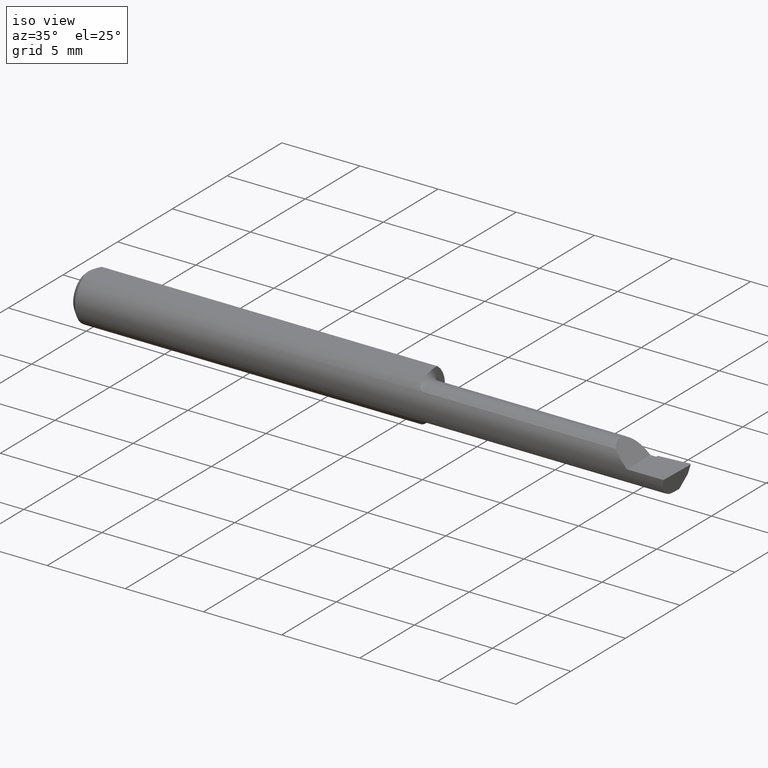
[diagram: clean part render]
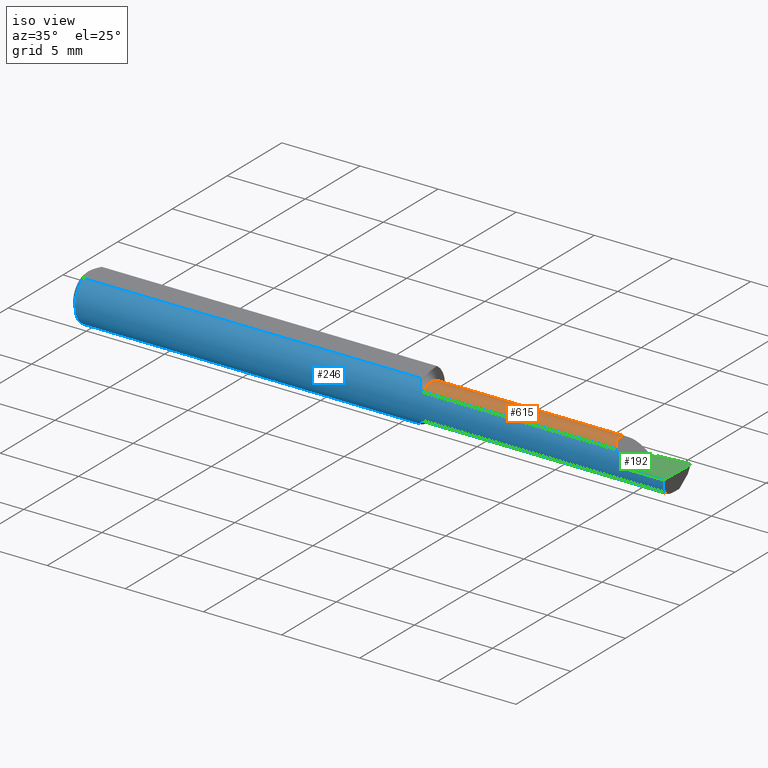
[diagram: same view with three faces highlighted in distinct colors, each labeled with its STEP entity id]
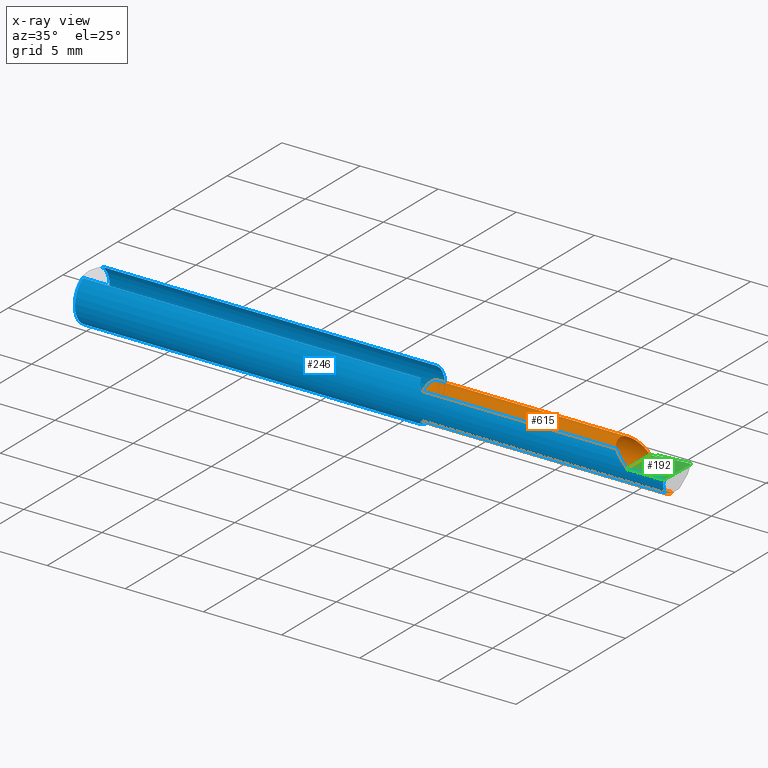
[diagram: x-ray of the same camera — body ghosted, the three highlighted faces saturated]
A machine part, iso view with three faces highlighted in distinct colors.
The next image is the same camera in x-ray (body ghosted, the three faces saturated) — at least one of them is partly hidden behind the body in this view.
Their STEP definitions:

[orange] entity #615 — the highlighted cylindrical surface (edge-blend (fillet) strip) has radius 1.1443 mm, axis along (-1, -0, -0).
#8 = ORIENTED_EDGE ( 'NONE', *, *, #517, .F. ) ;
#50 = EDGE_CURVE ( 'NONE', #646, #102, #438, .T. ) ;
#57 = EDGE_CURVE ( 'NONE', #390, #650, #120, .T. ) ;
#59 = DIRECTION ( 'NONE',  ( -1.000000000000000000, -5.691349986800549142E-18, -0.0000000000000000000 ) ) ;
#63 = DIRECTION ( 'NONE',  ( 0.0000000000000000000, -1.000000000000000000, 0.0000000000000000000 ) ) ;
#67 = CARTESIAN_POINT ( 'NONE',  ( 1.492946566646605078, -0.02239999999999999630, -0.04504999999999998589 ) ) ;
#90 = EDGE_CURVE ( 'NONE', #454, #638, #345, .T. ) ;
#94 = VECTOR ( 'NONE', #593, 39.37007874015748143 ) ;
#102 = VERTEX_POINT ( 'NONE', #219 ) ;
#117 = EDGE_CURVE ( 'NONE', #318, #344, #149, .T. ) ;
#118 = CARTESIAN_POINT ( 'NONE',  ( 1.420000000000000151, -0.02239999999999999630, 0.0000000000000000000 ) ) ;
#120 = LINE ( 'NONE', #157, #329 ) ;
#137 = DIRECTION ( 'NONE',  ( 1.000000000000000000, 5.691349986800549142E-18, 0.0000000000000000000 ) ) ;
#144 = DIRECTION ( 'NONE',  ( 1.000000000000000000, 5.691349986800549142E-18, 0.0000000000000000000 ) ) ;
#146 = EDGE_CURVE ( 'NONE', #372, #318, #262, .T. ) ;
#149 =( BOUNDED_CURVE ( )  B_SPLINE_CURVE ( 3, ( #152, #577, #526, #264 ),
 .UNSPECIFIED., .F., .T. ) 
 B_SPLINE_CURVE_WITH_KNOTS ( ( 4, 4 ),
 ( 5.546277306536648410, 7.853981633974482790 ),
 .UNSPECIFIED. ) 
 CURVE ( )  GEOMETRIC_REPRESENTATION_ITEM ( )  RATIONAL_B_SPLINE_CURVE ( ( 1.000000000000000000, 0.6033122017619977351, 0.6033122017619977351, 1.000000000000000000 ) ) 
 REPRESENTATION_ITEM ( '' )  );
#152 = CARTESIAN_POINT ( 'NONE',  ( 1.371638225962093838, -0.05267366071428594004, 0.03336177403790593909 ) ) ;
#157 = CARTESIAN_POINT ( 'NONE',  ( 1.152500000000000080, -0.05267366071428578739, -0.03336177403790609869 ) ) ;
#161 = CYLINDRICAL_SURFACE ( 'NONE', #622, 0.04504999999999996507 ) ;
#166 = CARTESIAN_POINT ( 'NONE',  ( 1.492874371667013866, -0.04428776192107812537, -0.04097143695815293196 ) ) ;
#168 = CARTESIAN_POINT ( 'NONE',  ( 1.492650040401416689, -0.03372388044486962499, -0.04504999999999997201 ) ) ;
#169 = DIRECTION ( 'NONE',  ( 1.000000000000000000, 5.691349986800549142E-18, 0.0000000000000000000 ) ) ;
#175 = ORIENTED_EDGE ( 'NONE', *, *, #502, .F. ) ;
#191 = CARTESIAN_POINT ( 'NONE',  ( 1.420000000000000151, -0.001476535193823043943, -0.03989625446711346501 ) ) ;
#194 = DIRECTION ( 'NONE',  ( -1.000000000000000000, -5.691349986800549142E-18, -0.0000000000000000000 ) ) ;
#219 = CARTESIAN_POINT ( 'NONE',  ( 1.420000000000000151, 0.01811171944543690446, -0.01970540757188763911 ) ) ;
#226 = CARTESIAN_POINT ( 'NONE',  ( 0.8850000000000001199, -0.05267366071428589841, 0.03336177403790596685 ) ) ;
#232 = CARTESIAN_POINT ( 'NONE',  ( -2.563953169053420290E-19, 0.02264999999999995489, 1.836970198721030427E-16 ) ) ;
#233 = LINE ( 'NONE', #620, #94 ) ;
#262 = LINE ( 'NONE', #469, #572 ) ;
#264 = CARTESIAN_POINT ( 'NONE',  ( 1.405000000000000249, 0.02264999999999992714, 1.163414459189985436E-17 ) ) ;
#265 = CIRCLE ( 'NONE', #564, 0.04504999999999993732 ) ;
#274 = ORIENTED_EDGE ( 'NONE', *, *, #90, .T. ) ;
#275 = CARTESIAN_POINT ( 'NONE',  ( 1.420000000000000151, -0.02239999999999999630, 0.0000000000000000000 ) ) ;
#299 = ORIENTED_EDGE ( 'NONE', *, *, #331, .F. ) ;
#309 = LINE ( 'NONE', #232, #326 ) ;
#315 = CARTESIAN_POINT ( 'NONE',  ( 0.0000000000000000000, -0.02240000000000000324, 0.0000000000000000000 ) ) ;
#318 = VERTEX_POINT ( 'NONE', #645 ) ;
#326 = VECTOR ( 'NONE', #137, 39.37007874015748143 ) ;
#329 = VECTOR ( 'NONE', #606, 39.37007874015748143 ) ;
#330 = ORIENTED_EDGE ( 'NONE', *, *, #57, .T. ) ;
#331 = EDGE_CURVE ( 'NONE', #372, #650, #265, .T. ) ;
#335 = CARTESIAN_POINT ( 'NONE',  ( 0.8850000000000001199, -0.05267366071428587759, -0.03336177403790597379 ) ) ;
#339 = DIRECTION ( 'NONE',  ( 0.0000000000000000000, -1.000000000000000000, 0.0000000000000000000 ) ) ;
#344 = VERTEX_POINT ( 'NONE', #540 ) ;
#345 = CIRCLE ( 'NONE', #442, 0.04504999999999999283 ) ;
#351 = CARTESIAN_POINT ( 'NONE',  ( 1.493589448587071544, -0.05267366071428578739, -0.03336177403790609869 ) ) ;
#352 = CARTESIAN_POINT ( 'NONE',  ( 1.420000000000000151, -0.02239999999999999630, -0.04504999999999998589 ) ) ;
#369 = EDGE_CURVE ( 'NONE', #390, #626, #570, .T. ) ;
#372 = VERTEX_POINT ( 'NONE', #226 ) ;
#376 = AXIS2_PLACEMENT_3D ( 'NONE', #275, #483, #63 ) ;
#377 = CIRCLE ( 'NONE', #452, 0.04504999999999996507 ) ;
#390 = VERTEX_POINT ( 'NONE', #351 ) ;
#408 = EDGE_LOOP ( 'NONE', ( #525, #330, #299, #632, #516, #583, #552, #175, #274, #8 ) ) ;
#438 = CIRCLE ( 'NONE', #376, 0.04504999999999999283 ) ;
#442 = AXIS2_PLACEMENT_3D ( 'NONE', #582, #59, #580 ) ;
#452 = AXIS2_PLACEMENT_3D ( 'NONE', #118, #169, #543 ) ;
#454 = VERTEX_POINT ( 'NONE', #191 ) ;
#469 = CARTESIAN_POINT ( 'NONE',  ( 1.152500000000000080, -0.05267366071428578739, 0.03336177403790609869 ) ) ;
#483 = DIRECTION ( 'NONE',  ( -1.000000000000000000, -5.691349986800549142E-18, -0.0000000000000000000 ) ) ;
#502 = EDGE_CURVE ( 'NONE', #454, #102, #377, .T. ) ;
#512 = CARTESIAN_POINT ( 'NONE',  ( 1.492946566646605078, -0.02239999999999999630, -0.04504999999999998589 ) ) ;
#516 = ORIENTED_EDGE ( 'NONE', *, *, #117, .T. ) ;
#517 = EDGE_CURVE ( 'NONE', #626, #638, #233, .T. ) ;
#525 = ORIENTED_EDGE ( 'NONE', *, *, #369, .F. ) ;
#526 = CARTESIAN_POINT ( 'NONE',  ( 1.359483931624303699, 0.02264999999999996530, 0.04551606837569594638 ) ) ;
#537 = CARTESIAN_POINT ( 'NONE',  ( 1.493589448587071544, -0.05267366071428578739, -0.03336177403790609869 ) ) ;
#540 = CARTESIAN_POINT ( 'NONE',  ( 1.405000000000000249, 0.02264999999999992714, 1.163414459189985436E-17 ) ) ;
#543 = DIRECTION ( 'NONE',  ( 0.0000000000000000000, -1.000000000000000000, 0.0000000000000000000 ) ) ;
#544 = DIRECTION ( 'NONE',  ( -1.000000000000000000, -5.691349986800549142E-18, -0.0000000000000000000 ) ) ;
#552 = ORIENTED_EDGE ( 'NONE', *, *, #50, .T. ) ;
#564 = AXIS2_PLACEMENT_3D ( 'NONE', #649, #544, #339 ) ;
#570 =( BOUNDED_CURVE ( )  B_SPLINE_CURVE ( 3, ( #537, #166, #168, #67 ),
 .UNSPECIFIED., .F., .T. ) 
 B_SPLINE_CURVE_WITH_KNOTS ( ( 4, 4 ),
 ( 5.756326750816667115, 6.493234751459600496 ),
 .UNSPECIFIED. ) 
 CURVE ( )  GEOMETRIC_REPRESENTATION_ITEM ( )  RATIONAL_B_SPLINE_CURVE ( ( 1.000000000000000000, 0.9552568590268901705, 0.9552568590268901705, 1.000000000000000000 ) ) 
 REPRESENTATION_ITEM ( '' )  );
#572 = VECTOR ( 'NONE', #144, 39.37007874015748143 ) ;
#577 = CARTESIAN_POINT ( 'NONE',  ( 1.341051366671215384, -0.01896673977657570287, 0.06394863332878410189 ) ) ;
#580 = DIRECTION ( 'NONE',  ( 0.0000000000000000000, -1.000000000000000000, 0.0000000000000000000 ) ) ;
#581 = FACE_OUTER_BOUND ( 'NONE', #408, .T. ) ;
#582 = CARTESIAN_POINT ( 'NONE',  ( 1.420000000000000151, -0.02239999999999999630, 0.0000000000000000000 ) ) ;
#583 = ORIENTED_EDGE ( 'NONE', *, *, #623, .T. ) ;
#593 = DIRECTION ( 'NONE',  ( -1.000000000000000000, 5.691349986800548372E-18, -0.0000000000000000000 ) ) ;
#606 = DIRECTION ( 'NONE',  ( -1.000000000000000000, -5.691349986800549142E-18, -0.0000000000000000000 ) ) ;
#615 = ADVANCED_FACE ( 'NONE', ( #581 ), #161, .T. ) ;
#620 = CARTESIAN_POINT ( 'NONE',  ( 1.500000000000000222, -0.02239999999999999630, -0.04504999999999998589 ) ) ;
#622 = AXIS2_PLACEMENT_3D ( 'NONE', #315, #194, #662 ) ;
#623 = EDGE_CURVE ( 'NONE', #344, #646, #309, .T. ) ;
#626 = VERTEX_POINT ( 'NONE', #512 ) ;
#632 = ORIENTED_EDGE ( 'NONE', *, *, #146, .T. ) ;
#638 = VERTEX_POINT ( 'NONE', #352 ) ;
#645 = CARTESIAN_POINT ( 'NONE',  ( 1.371638225962093838, -0.05267366071428594004, 0.03336177403790593909 ) ) ;
#646 = VERTEX_POINT ( 'NONE', #648 ) ;
#648 = CARTESIAN_POINT ( 'NONE',  ( 1.420000000000000151, 0.02264999999999999653, 1.836970198721031660E-16 ) ) ;
#649 = CARTESIAN_POINT ( 'NONE',  ( 0.8850000000000001199, -0.02239999999999999977, 0.0000000000000000000 ) ) ;
#650 = VERTEX_POINT ( 'NONE', #335 ) ;
#662 = DIRECTION ( 'NONE',  ( 5.691349986800549913E-18, -1.000000000000000000, 0.0000000000000000000 ) ) ;

[blue] entity #246 — the highlighted cylindrical surface (edge-blend (fillet) strip) has radius 1.5837 mm, axis along (-1, -0, -0).
#7 = CARTESIAN_POINT ( 'NONE',  ( 0.01500000000000000465, 0.0000000000000000000, -0.06235000000000000264 ) ) ;
#11 =( BOUNDED_CURVE ( )  B_SPLINE_CURVE ( 3, ( #241, #553, #658, #45 ),
 .UNSPECIFIED., .F., .T. ) 
 B_SPLINE_CURVE_WITH_KNOTS ( ( 4, 4 ),
 ( 0.7961532496683325633, 1.360746882514882961 ),
 .UNSPECIFIED. ) 
 CURVE ( )  GEOMETRIC_REPRESENTATION_ITEM ( )  RATIONAL_B_SPLINE_CURVE ( ( 1.000000000000000000, 0.9736121104788257874, 0.9736121104788257874, 1.000000000000000000 ) ) 
 REPRESENTATION_ITEM ( '' )  );
#21 = CARTESIAN_POINT ( 'NONE',  ( 1.405000000000000249, -0.06235000000000005121, 1.163414459189985436E-17 ) ) ;
#27 = VECTOR ( 'NONE', #268, 39.37007874015748143 ) ;
#28 = VECTOR ( 'NONE', #560, 39.37007874015748143 ) ;
#32 = CARTESIAN_POINT ( 'NONE',  ( 0.8681327455766955081, -0.03943215935316556064, -0.04868886658133497053 ) ) ;
#33 = EDGE_CURVE ( 'NONE', #114, #456, #155, .T. ) ;
#45 = CARTESIAN_POINT ( 'NONE',  ( 1.497433779686218935, -0.06235000000000005121, 3.231995301756451425E-19 ) ) ;
#51 = AXIS2_PLACEMENT_3D ( 'NONE', #287, #595, #538 ) ;
#57 = EDGE_CURVE ( 'NONE', #390, #650, #120, .T. ) ;
#58 = LINE ( 'NONE', #466, #635 ) ;
#61 = ORIENTED_EDGE ( 'NONE', *, *, #400, .T. ) ;
#62 = LINE ( 'NONE', #533, #27 ) ;
#64 = B_SPLINE_CURVE_WITH_KNOTS ( 'NONE', 3,
 ( #467, #100, #515, #200, #255, #621, #568, #311, #675, #364 ),
 .UNSPECIFIED., .F., .F.,
 ( 4, 2, 2, 2, 4 ),
 ( 3.797231421916798275E-07, 0.0004333373953855913481, 0.0006498162315072887087, 0.0007580556495681341905, 0.0008662950676289795640 ),
 .UNSPECIFIED. ) ;
#78 = DIRECTION ( 'NONE',  ( 0.0000000000000000000, 1.000000000000000000, 0.0000000000000000000 ) ) ;
#80 = LINE ( 'NONE', #421, #28 ) ;
#84 = CARTESIAN_POINT ( 'NONE',  ( 0.8787757133464818571, -0.05116520334387907737, -0.03564627526859109191 ) ) ;
#88 = CARTESIAN_POINT ( 'NONE',  ( 0.8627289934230482071, -0.02215482600002543698, -0.05866202889160986034 ) ) ;
#95 = CARTESIAN_POINT ( 'NONE',  ( 0.01500000000000185039, -0.03386738844380016850, 0.05235000000000000070 ) ) ;
#96 = VERTEX_POINT ( 'NONE', #532 ) ;
#100 = CARTESIAN_POINT ( 'NONE',  ( 0.8678735227475141700, -0.03849383661596396389, 0.04935695859860206314 ) ) ;
#103 = CARTESIAN_POINT ( 'NONE',  ( 0.8661821896890746775, -0.03386738844375222074, 0.05235000000000000070 ) ) ;
#106 = EDGE_CURVE ( 'NONE', #96, #490, #62, .T. ) ;
#114 = VERTEX_POINT ( 'NONE', #7 ) ;
#115 = ORIENTED_EDGE ( 'NONE', *, *, #388, .F. ) ;
#120 = LINE ( 'NONE', #157, #329 ) ;
#133 = CARTESIAN_POINT ( 'NONE',  ( 0.8602764403634772794, -0.002103274276246023915, -0.06268864719924562012 ) ) ;
#134 = ORIENTED_EDGE ( 'NONE', *, *, #135, .T. ) ;
#135 = EDGE_CURVE ( 'NONE', #239, #447, #80, .T. ) ;
#138 = ORIENTED_EDGE ( 'NONE', *, *, #321, .T. ) ;
#142 = CARTESIAN_POINT ( 'NONE',  ( 1.405000000000000249, -0.06235000000000005121, 1.163414459189985436E-17 ) ) ;
#144 = DIRECTION ( 'NONE',  ( 1.000000000000000000, 5.691349986800549142E-18, 0.0000000000000000000 ) ) ;
#146 = EDGE_CURVE ( 'NONE', #372, #318, #262, .T. ) ;
#155 = CIRCLE ( 'NONE', #337, 0.06235000000000000264 ) ;
#157 = CARTESIAN_POINT ( 'NONE',  ( 1.152500000000000080, -0.05267366071428578739, -0.03336177403790609869 ) ) ;
#159 = FACE_OUTER_BOUND ( 'NONE', #334, .T. ) ;
#182 = CARTESIAN_POINT ( 'NONE',  ( 0.8600000000000000977, 0.01155624999999977677, -0.06126969549408178839 ) ) ;
#189 = CARTESIAN_POINT ( 'NONE',  ( 0.0000000000000000000, 0.0000000000000000000, 0.0000000000000000000 ) ) ;
#200 = CARTESIAN_POINT ( 'NONE',  ( 0.8740738374070420313, -0.04761084945882115144, 0.04033650601908230632 ) ) ;
#226 = CARTESIAN_POINT ( 'NONE',  ( 0.8850000000000001199, -0.05267366071428589841, 0.03336177403790596685 ) ) ;
#234 = CARTESIAN_POINT ( 'NONE',  ( 1.381685276638327631, -0.05903713403021961653, 0.02331472336167206283 ) ) ;
#237 = CIRCLE ( 'NONE', #251, 0.06235000000000000264 ) ;
#239 = VERTEX_POINT ( 'NONE', #529 ) ;
#241 = CARTESIAN_POINT ( 'NONE',  ( 1.493589448587071544, -0.05267366071428578739, -0.03336177403790609869 ) ) ;
#246 = ADVANCED_FACE ( 'NONE', ( #159 ), #354, .T. ) ;
#251 = AXIS2_PLACEMENT_3D ( 'NONE', #448, #395, #78 ) ;
#254 = ORIENTED_EDGE ( 'NONE', *, *, #146, .F. ) ;
#255 = CARTESIAN_POINT ( 'NONE',  ( 0.8756610829636815030, -0.04915643512136039922, 0.03841395140597850949 ) ) ;
#261 = DIRECTION ( 'NONE',  ( -1.000000000000000000, -0.0000000000000000000, -0.0000000000000000000 ) ) ;
#262 = LINE ( 'NONE', #469, #572 ) ;
#268 = DIRECTION ( 'NONE',  ( 1.000000000000000000, 0.0000000000000000000, 0.0000000000000000000 ) ) ;
#276 = ORIENTED_EDGE ( 'NONE', *, *, #283, .F. ) ;
#283 = EDGE_CURVE ( 'NONE', #328, #490, #237, .T. ) ;
#287 = CARTESIAN_POINT ( 'NONE',  ( 0.01500000000000000465, 0.0000000000000000000, 0.0000000000000000000 ) ) ;
#289 = ORIENTED_EDGE ( 'NONE', *, *, #106, .T. ) ;
#290 = DIRECTION ( 'NONE',  ( 0.0000000000000000000, 0.0000000000000000000, 1.000000000000000000 ) ) ;
#303 = DIRECTION ( 'NONE',  ( 0.0000000000000000000, 0.0000000000000000000, 1.000000000000000000 ) ) ;
#311 = CARTESIAN_POINT ( 'NONE',  ( 0.8821345559677666870, -0.05240678568573022694, 0.03378794548805846149 ) ) ;
#318 = VERTEX_POINT ( 'NONE', #645 ) ;
#321 = EDGE_CURVE ( 'NONE', #447, #318, #522, .T. ) ;
#324 = DIRECTION ( 'NONE',  ( -1.000000000000000000, -0.0000000000000000000, -0.0000000000000000000 ) ) ;
#328 = VERTEX_POINT ( 'NONE', #489 ) ;
#329 = VECTOR ( 'NONE', #606, 39.37007874015748143 ) ;
#332 = ORIENTED_EDGE ( 'NONE', *, *, #33, .F. ) ;
#334 = EDGE_LOOP ( 'NONE', ( #536, #61, #134, #138, #254, #576, #441, #332, #554, #289, #276, #115 ) ) ;
#335 = CARTESIAN_POINT ( 'NONE',  ( 0.8850000000000001199, -0.05267366071428587759, -0.03336177403790597379 ) ) ;
#336 = CARTESIAN_POINT ( 'NONE',  ( 1.393107270290912636, -0.06235000000000000264, 0.01189272970908746181 ) ) ;
#337 = AXIS2_PLACEMENT_3D ( 'NONE', #656, #611, #303 ) ;
#346 = CARTESIAN_POINT ( 'NONE',  ( 0.8832409546724755423, -0.05267366071428587065, -0.03336177403790598073 ) ) ;
#349 = CARTESIAN_POINT ( 'NONE',  ( 0.8850000000000001199, -0.05267366071428587759, -0.03336177403790597379 ) ) ;
#350 = CARTESIAN_POINT ( 'NONE',  ( 0.8726126354017770259, -0.04600867268841657420, -0.04219264322731243466 ) ) ;
#351 = CARTESIAN_POINT ( 'NONE',  ( 1.493589448587071544, -0.05267366071428578739, -0.03336177403790609869 ) ) ;
#354 = CYLINDRICAL_SURFACE ( 'NONE', #394, 0.06235000000000000264 ) ;
#364 = CARTESIAN_POINT ( 'NONE',  ( 0.8850000000000001199, -0.05267366071428589841, 0.03336177403790596685 ) ) ;
#372 = VERTEX_POINT ( 'NONE', #226 ) ;
#374 = VERTEX_POINT ( 'NONE', #103 ) ;
#387 = CARTESIAN_POINT ( 'NONE',  ( 1.371638225962093838, -0.05267366071428594004, 0.03336177403790593909 ) ) ;
#388 = EDGE_CURVE ( 'NONE', #650, #328, #531, .T. ) ;
#390 = VERTEX_POINT ( 'NONE', #351 ) ;
#394 = AXIS2_PLACEMENT_3D ( 'NONE', #189, #324, #290 ) ;
#395 = DIRECTION ( 'NONE',  ( 1.000000000000000000, 5.691349986800549142E-18, 0.0000000000000000000 ) ) ;
#397 = CARTESIAN_POINT ( 'NONE',  ( 0.8775684941556227692, -0.05043275970182659745, -0.03668598949093534317 ) ) ;
#400 = EDGE_CURVE ( 'NONE', #390, #239, #11, .T. ) ;
#401 = CARTESIAN_POINT ( 'NONE',  ( 0.8659889881172214698, -0.03406974560157232518, -0.05264335079965575676 ) ) ;
#421 = CARTESIAN_POINT ( 'NONE',  ( 2.249639673992788601E-32, -0.06234999999999999570, 1.836970198721030427E-16 ) ) ;
#441 = ORIENTED_EDGE ( 'NONE', *, *, #574, .T. ) ;
#447 = VERTEX_POINT ( 'NONE', #142 ) ;
#448 = CARTESIAN_POINT ( 'NONE',  ( 0.8600000000000000977, 0.0000000000000000000, 0.0000000000000000000 ) ) ;
#453 = CARTESIAN_POINT ( 'NONE',  ( 0.8815922039432546597, -0.05228879390856557702, -0.03397671269166892966 ) ) ;
#455 = CARTESIAN_POINT ( 'NONE',  ( 0.8616480927463245898, -0.01564147840104317816, -0.06074236086770335580 ) ) ;
#456 = VERTEX_POINT ( 'NONE', #95 ) ;
#461 = EDGE_CURVE ( 'NONE', #374, #372, #64, .T. ) ;
#466 = CARTESIAN_POINT ( 'NONE',  ( 0.0000000000000000000, -0.03386738844375222768, 0.05234999999999997988 ) ) ;
#467 = CARTESIAN_POINT ( 'NONE',  ( 0.8661821896890746775, -0.03386738844375222074, 0.05235000000000000070 ) ) ;
#469 = CARTESIAN_POINT ( 'NONE',  ( 1.152500000000000080, -0.05267366071428578739, 0.03336177403790609869 ) ) ;
#481 = CIRCLE ( 'NONE', #51, 0.06235000000000000264 ) ;
#489 = CARTESIAN_POINT ( 'NONE',  ( 0.8600000000000000977, 0.01155624999999977677, -0.06126969549408178839 ) ) ;
#490 = VERTEX_POINT ( 'NONE', #610 ) ;
#503 = CARTESIAN_POINT ( 'NONE',  ( 0.8599999999999958789, 0.004792881695546951336, -0.06254535345742004426 ) ) ;
#515 = CARTESIAN_POINT ( 'NONE',  ( 0.8698990837423202782, -0.04251446938472882436, 0.04588310374207916348 ) ) ;
#522 =( BOUNDED_CURVE ( )  B_SPLINE_CURVE ( 3, ( #21, #336, #234, #387 ),
 .UNSPECIFIED., .F., .T. ) 
 B_SPLINE_CURVE_WITH_KNOTS ( ( 4, 4 ),
 ( 4.712388980384689674, 5.276982613231236741 ),
 .UNSPECIFIED. ) 
 CURVE ( )  GEOMETRIC_REPRESENTATION_ITEM ( )  RATIONAL_B_SPLINE_CURVE ( ( 1.000000000000000000, 0.9736121104788260094, 0.9736121104788260094, 1.000000000000000000 ) ) 
 REPRESENTATION_ITEM ( '' )  );
#529 = CARTESIAN_POINT ( 'NONE',  ( 1.497433779686218935, -0.06235000000000005121, 3.231995301756451425E-19 ) ) ;
#531 = B_SPLINE_CURVE_WITH_KNOTS ( 'NONE', 3,
 ( #349, #346, #453, #84, #397, #655, #350, #32, #401, #88, #455, #133, #503, #182 ),
 .UNSPECIFIED., .F., .F.,
 ( 4, 2, 2, 2, 2, 2, 4 ),
 ( 1.960001601932203710E-07, 0.0001315703184465657908, 0.0002629446367329383292, 0.0005256932733056836771, 0.001051190546451174265, 0.001576687819596664418, 0.002102185092742154572 ),
 .UNSPECIFIED. ) ;
#532 = CARTESIAN_POINT ( 'NONE',  ( 0.01500000000000000465, 0.03386738844375223462, 0.05234999999999997988 ) ) ;
#533 = CARTESIAN_POINT ( 'NONE',  ( 0.0000000000000000000, 0.03386738844375223462, 0.05234999999999997988 ) ) ;
#536 = ORIENTED_EDGE ( 'NONE', *, *, #57, .F. ) ;
#538 = DIRECTION ( 'NONE',  ( 0.0000000000000000000, 0.0000000000000000000, 1.000000000000000000 ) ) ;
#553 = CARTESIAN_POINT ( 'NONE',  ( 1.494656860756163885, -0.05903713403021959572, -0.02331472336167220855 ) ) ;
#554 = ORIENTED_EDGE ( 'NONE', *, *, #585, .F. ) ;
#560 = DIRECTION ( 'NONE',  ( -1.000000000000000000, -0.0000000000000000000, -0.0000000000000000000 ) ) ;
#568 = CARTESIAN_POINT ( 'NONE',  ( 0.8796548993184856169, -0.05157034440792590546, 0.03505133412385286196 ) ) ;
#572 = VECTOR ( 'NONE', #144, 39.37007874015748143 ) ;
#574 = EDGE_CURVE ( 'NONE', #374, #456, #58, .T. ) ;
#576 = ORIENTED_EDGE ( 'NONE', *, *, #461, .F. ) ;
#585 = EDGE_CURVE ( 'NONE', #96, #114, #481, .T. ) ;
#595 = DIRECTION ( 'NONE',  ( -1.000000000000000000, -0.0000000000000000000, -0.0000000000000000000 ) ) ;
#606 = DIRECTION ( 'NONE',  ( -1.000000000000000000, -5.691349986800549142E-18, -0.0000000000000000000 ) ) ;
#610 = CARTESIAN_POINT ( 'NONE',  ( 0.8600000000000000977, 0.03386738844375224156, 0.05235000000000000070 ) ) ;
#611 = DIRECTION ( 'NONE',  ( -1.000000000000000000, -0.0000000000000000000, -0.0000000000000000000 ) ) ;
#621 = CARTESIAN_POINT ( 'NONE',  ( 0.8785877219039738284, -0.05102224570557687550, 0.03585204334870993603 ) ) ;
#635 = VECTOR ( 'NONE', #261, 39.37007874015748143 ) ;
#645 = CARTESIAN_POINT ( 'NONE',  ( 1.371638225962093838, -0.05267366071428594004, 0.03336177403790593909 ) ) ;
#650 = VERTEX_POINT ( 'NONE', #335 ) ;
#655 = CARTESIAN_POINT ( 'NONE',  ( 0.8743270384831821618, -0.04799382633214963056, -0.03989142061000421069 ) ) ;
#656 = CARTESIAN_POINT ( 'NONE',  ( 0.01500000000000000465, 0.0000000000000000000, 0.0000000000000000000 ) ) ;
#658 = CARTESIAN_POINT ( 'NONE',  ( 1.495973035530413053, -0.06235000000000000958, -0.01189272970908753987 ) ) ;
#675 = CARTESIAN_POINT ( 'NONE',  ( 0.8835376041507414513, -0.05267366071513952808, 0.03336177403655846141 ) ) ;

[green] entity #192 — the highlighted planar face has unit normal (-0, 0, -1).
#1 = CARTESIAN_POINT ( 'NONE',  ( 1.420000000000000151, -0.2500000000000000555, 9.797174393178828616E-18 ) ) ;
#5 = CARTESIAN_POINT ( 'NONE',  ( 1.496007920276498648, 0.03524764111161338143, 0.0000000000000000000 ) ) ;
#9 = ORIENTED_EDGE ( 'NONE', *, *, #179, .F. ) ;
#13 = EDGE_CURVE ( 'NONE', #447, #344, #298, .T. ) ;
#28 = VECTOR ( 'NONE', #560, 39.37007874015748143 ) ;
#30 =( BOUNDED_CURVE ( )  B_SPLINE_CURVE ( 3, ( #379, #160, #112, #637 ),
 .UNSPECIFIED., .F., .F. ) 
 B_SPLINE_CURVE_WITH_KNOTS ( ( 4, 4 ),
 ( 3.511516179717623753, 3.604018710826140115 ),
 .UNSPECIFIED. ) 
 CURVE ( )  GEOMETRIC_REPRESENTATION_ITEM ( )  RATIONAL_B_SPLINE_CURVE ( ( 1.000000000000000000, 0.9992870672494020834, 0.9992870672494020834, 1.000000000000000000 ) ) 
 REPRESENTATION_ITEM ( '' )  );
#43 = CARTESIAN_POINT ( 'NONE',  ( 1.405000000000000249, -0.2500000000000000555, 1.163414459189985436E-17 ) ) ;
#66 = ORIENTED_EDGE ( 'NONE', *, *, #548, .F. ) ;
#69 = FACE_OUTER_BOUND ( 'NONE', #449, .T. ) ;
#74 = LINE ( 'NONE', #624, #341 ) ;
#80 = LINE ( 'NONE', #421, #28 ) ;
#83 = EDGE_CURVE ( 'NONE', #600, #439, #30, .T. ) ;
#108 = VERTEX_POINT ( 'NONE', #187 ) ;
#112 = CARTESIAN_POINT ( 'NONE',  ( 1.495759144559519527, 0.03524165206609278927, 8.547915732267098835E-18 ) ) ;
#125 = VECTOR ( 'NONE', #411, 39.37007874015748143 ) ;
#128 = VERTEX_POINT ( 'NONE', #148 ) ;
#135 = EDGE_CURVE ( 'NONE', #239, #447, #80, .T. ) ;
#137 = DIRECTION ( 'NONE',  ( 1.000000000000000000, 5.691349986800549142E-18, 0.0000000000000000000 ) ) ;
#142 = CARTESIAN_POINT ( 'NONE',  ( 1.405000000000000249, -0.06235000000000005121, 1.163414459189985436E-17 ) ) ;
#148 = CARTESIAN_POINT ( 'NONE',  ( 1.499880855614015740, 0.03110005946548960454, 2.797005382439232540E-20 ) ) ;
#151 = DIRECTION ( 'NONE',  ( -1.224646799147353947E-16, 0.0000000000000000000, -1.000000000000000000 ) ) ;
#160 = CARTESIAN_POINT ( 'NONE',  ( 1.495883579913029671, 0.03524764111161338836, 8.532676796529436165E-18 ) ) ;
#172 = VECTOR ( 'NONE', #625, 39.37007874015748143 ) ;
#179 = EDGE_CURVE ( 'NONE', #646, #108, #445, .T. ) ;
#186 = EDGE_CURVE ( 'NONE', #239, #128, #209, .T. ) ;
#187 = CARTESIAN_POINT ( 'NONE',  ( 1.420000000000000151, 0.02794687614419801361, 1.835460370743176819E-16 ) ) ;
#192 = ADVANCED_FACE ( 'NONE', ( #69 ), #423, .F. ) ;
#209 = LINE ( 'NONE', #367, #604 ) ;
#212 = DIRECTION ( 'NONE',  ( -1.000000000000000000, 0.0000000000000000000, 1.224646799147353947E-16 ) ) ;
#218 = AXIS2_PLACEMENT_3D ( 'NONE', #319, #151, #212 ) ;
#232 = CARTESIAN_POINT ( 'NONE',  ( -2.563953169053420290E-19, 0.02264999999999995489, 1.836970198721030427E-16 ) ) ;
#238 = ORIENTED_EDGE ( 'NONE', *, *, #13, .F. ) ;
#239 = VERTEX_POINT ( 'NONE', #529 ) ;
#240 = CARTESIAN_POINT ( 'NONE',  ( 1.498346190944504830, 0.03524764111161336061, 8.231093924805310805E-18 ) ) ;
#270 = EDGE_CURVE ( 'NONE', #128, #600, #398, .T. ) ;
#295 = CARTESIAN_POINT ( 'NONE',  ( 1.496007920276498648, 0.03524764111161338143, 0.0000000000000000000 ) ) ;
#298 = LINE ( 'NONE', #43, #125 ) ;
#309 = LINE ( 'NONE', #232, #326 ) ;
#316 = DIRECTION ( 'NONE',  ( 0.02617694830784732252, 0.9996573249755579260, -3.158139334220720673E-18 ) ) ;
#319 = CARTESIAN_POINT ( 'NONE',  ( 1.500000000000000222, -0.2500000000000000555, 0.0000000000000000000 ) ) ;
#326 = VECTOR ( 'NONE', #137, 39.37007874015748143 ) ;
#340 = CARTESIAN_POINT ( 'NONE',  ( 1.499880855614015740, 0.03110005946548960454, 2.797005382439232540E-20 ) ) ;
#341 = VECTOR ( 'NONE', #566, 39.37007874015748854 ) ;
#342 = ORIENTED_EDGE ( 'NONE', *, *, #83, .T. ) ;
#344 = VERTEX_POINT ( 'NONE', #540 ) ;
#367 = CARTESIAN_POINT ( 'NONE',  ( 1.492525117049605665, -0.2498042633013223268, 9.154091479201542017E-19 ) ) ;
#379 = CARTESIAN_POINT ( 'NONE',  ( 1.496007920276498648, 0.03524764111161338143, 0.0000000000000000000 ) ) ;
#398 =( BOUNDED_CURVE ( )  B_SPLINE_CURVE ( 3, ( #340, #451, #240, #295 ),
 .UNSPECIFIED., .F., .T. ) 
 B_SPLINE_CURVE_WITH_KNOTS ( ( 4, 4 ),
 ( 1.953092279228399786, 3.511516179717623753 ),
 .UNSPECIFIED. ) 
 CURVE ( )  GEOMETRIC_REPRESENTATION_ITEM ( )  RATIONAL_B_SPLINE_CURVE ( ( 1.000000000000000000, 0.8076450242550490266, 0.8076450242550490266, 1.000000000000000000 ) ) 
 REPRESENTATION_ITEM ( '' )  );
#411 = DIRECTION ( 'NONE',  ( -0.0000000000000000000, 1.000000000000000000, -0.0000000000000000000 ) ) ;
#421 = CARTESIAN_POINT ( 'NONE',  ( 2.249639673992788601E-32, -0.06234999999999999570, 1.836970198721030427E-16 ) ) ;
#423 = PLANE ( 'NONE',  #218 ) ;
#439 = VERTEX_POINT ( 'NONE', #561 ) ;
#445 = LINE ( 'NONE', #1, #172 ) ;
#447 = VERTEX_POINT ( 'NONE', #142 ) ;
#449 = EDGE_LOOP ( 'NONE', ( #542, #661, #342, #66, #9, #499, #238, #482 ) ) ;
#451 = CARTESIAN_POINT ( 'NONE',  ( 1.499944638786153472, 0.03353584053852148861, 8.035340521517366195E-18 ) ) ;
#482 = ORIENTED_EDGE ( 'NONE', *, *, #135, .F. ) ;
#499 = ORIENTED_EDGE ( 'NONE', *, *, #623, .F. ) ;
#529 = CARTESIAN_POINT ( 'NONE',  ( 1.497433779686218935, -0.06235000000000005121, 3.231995301756451425E-19 ) ) ;
#540 = CARTESIAN_POINT ( 'NONE',  ( 1.405000000000000249, 0.02264999999999992714, 1.163414459189985436E-17 ) ) ;
#542 = ORIENTED_EDGE ( 'NONE', *, *, #186, .T. ) ;
#548 = EDGE_CURVE ( 'NONE', #108, #439, #74, .T. ) ;
#560 = DIRECTION ( 'NONE',  ( -1.000000000000000000, -0.0000000000000000000, -0.0000000000000000000 ) ) ;
#561 = CARTESIAN_POINT ( 'NONE',  ( 1.495634880358085672, 0.03522968678441162904, 5.345729797365519968E-19 ) ) ;
#566 = DIRECTION ( 'NONE',  ( 0.9953961983671786307, 0.09584575252022466130, -1.219008768213809603E-16 ) ) ;
#600 = VERTEX_POINT ( 'NONE', #5 ) ;
#604 = VECTOR ( 'NONE', #316, 39.37007874015748854 ) ;
#623 = EDGE_CURVE ( 'NONE', #344, #646, #309, .T. ) ;
#624 = CARTESIAN_POINT ( 'NONE',  ( 0.8971276994979847652, -0.02239999999999999977, 7.383056331043944924E-17 ) ) ;
#625 = DIRECTION ( 'NONE',  ( -5.691349986800549142E-18, 1.000000000000000000, 6.969893544162626646E-34 ) ) ;
#637 = CARTESIAN_POINT ( 'NONE',  ( 1.495634880358085672, 0.03522968678441162904, 5.345729797365519968E-19 ) ) ;
#646 = VERTEX_POINT ( 'NONE', #648 ) ;
#648 = CARTESIAN_POINT ( 'NONE',  ( 1.420000000000000151, 0.02264999999999999653, 1.836970198721031660E-16 ) ) ;
#661 = ORIENTED_EDGE ( 'NONE', *, *, #270, .T. ) ;